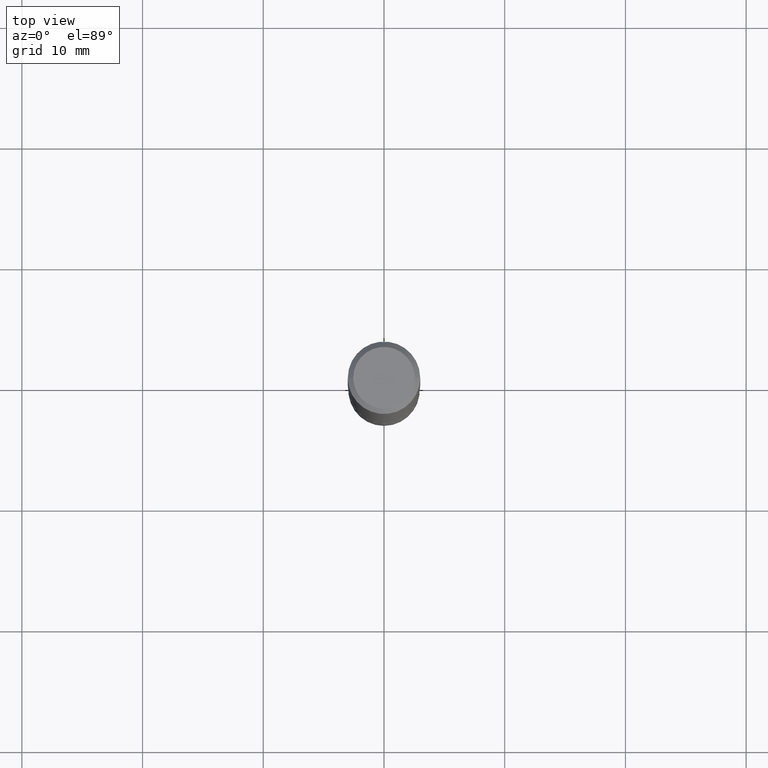
[diagram: clean part render]
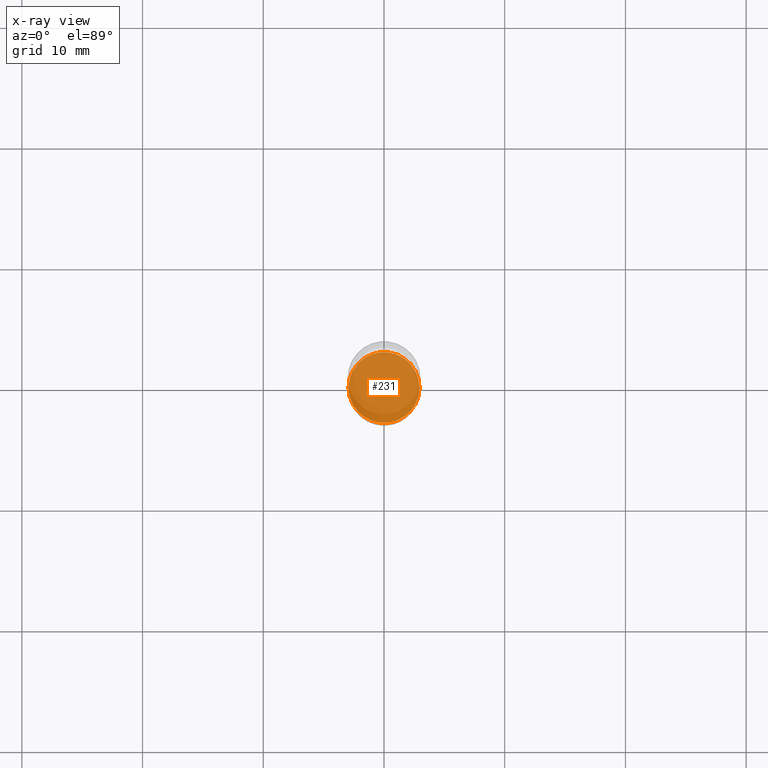
[diagram: x-ray — body ghosted, one internal face saturated and labeled with its STEP entity id]
A machine part, top view, then the same camera in x-ray: the body is ghosted and one INTERNAL B-rep face — a face not visible from any outside direction — is saturated and labeled: STEP entity #231.
In plain terms, the highlighted planar face has unit normal (-0, 0, 1).
Its self-contained STEP definition (entity closure, byte-faithful):
#3 = DIRECTION ( 'NONE',  ( -2.445468806185136597E-29, 3.491481338843145583E-15, 1.000000000000000000 ) ) ;
#28 = VERTEX_POINT ( 'NONE', #288 ) ;
#47 = ORIENTED_EDGE ( 'NONE', *, *, #164, .F. ) ;
#52 = VERTEX_POINT ( 'NONE', #63 ) ;
#63 = CARTESIAN_POINT ( 'NONE',  ( 0.1156500000000000028, -7.351313958934242618E-15, -1.874200000000000532 ) ) ;
#73 = CARTESIAN_POINT ( 'NONE',  ( 4.583297636552184206E-29, -6.543734325259825090E-15, -1.874200000000000532 ) ) ;
#87 = AXIS2_PLACEMENT_3D ( 'NONE', #73, #3, #439 ) ;
#100 = CARTESIAN_POINT ( 'NONE',  ( 4.583297636552184206E-29, -6.543734325259825090E-15, -1.874200000000000532 ) ) ;
#103 = ORIENTED_EDGE ( 'NONE', *, *, #379, .F. ) ;
#109 = FACE_OUTER_BOUND ( 'NONE', #355, .T. ) ;
#112 = PLANE ( 'NONE',  #232 ) ;
#144 = DIRECTION ( 'NONE',  ( 1.000000000000000000, -6.982962677686269866E-15, 0.000000000000000000 ) ) ;
#164 = EDGE_CURVE ( 'NONE', #28, #52, #275, .T. ) ;
#183 = CARTESIAN_POINT ( 'NONE',  ( 4.583297636552184206E-29, -6.543734325259825090E-15, -1.874200000000000532 ) ) ;
#211 = AXIS2_PLACEMENT_3D ( 'NONE', #183, #287, #144 ) ;
#231 = ADVANCED_FACE ( 'NONE', ( #109 ), #112, .F. ) ;
#232 = AXIS2_PLACEMENT_3D ( 'NONE', #100, #321, #463 ) ;
#275 = CIRCLE ( 'NONE', #211, 0.1156500000000000028 ) ;
#287 = DIRECTION ( 'NONE',  ( -2.445468806185136597E-29, 3.491481338843145583E-15, 1.000000000000000000 ) ) ;
#288 = CARTESIAN_POINT ( 'NONE',  ( -0.1156500000000000028, -5.719342424179157807E-15, -1.874200000000000532 ) ) ;
#321 = DIRECTION ( 'NONE',  ( -2.438088387897960049E-29, 3.491481338843145188E-15, 1.000000000000000000 ) ) ;
#355 = EDGE_LOOP ( 'NONE', ( #103, #47 ) ) ;
#379 = EDGE_CURVE ( 'NONE', #52, #28, #408, .T. ) ;
#408 = CIRCLE ( 'NONE', #87, 0.1156500000000000028 ) ;
#439 = DIRECTION ( 'NONE',  ( 1.000000000000000000, -6.982962677686269866E-15, 0.000000000000000000 ) ) ;
#463 = DIRECTION ( 'NONE',  ( 1.000000000000000000, -6.982962677686265922E-15, 4.876176775795935793E-29 ) ) ;